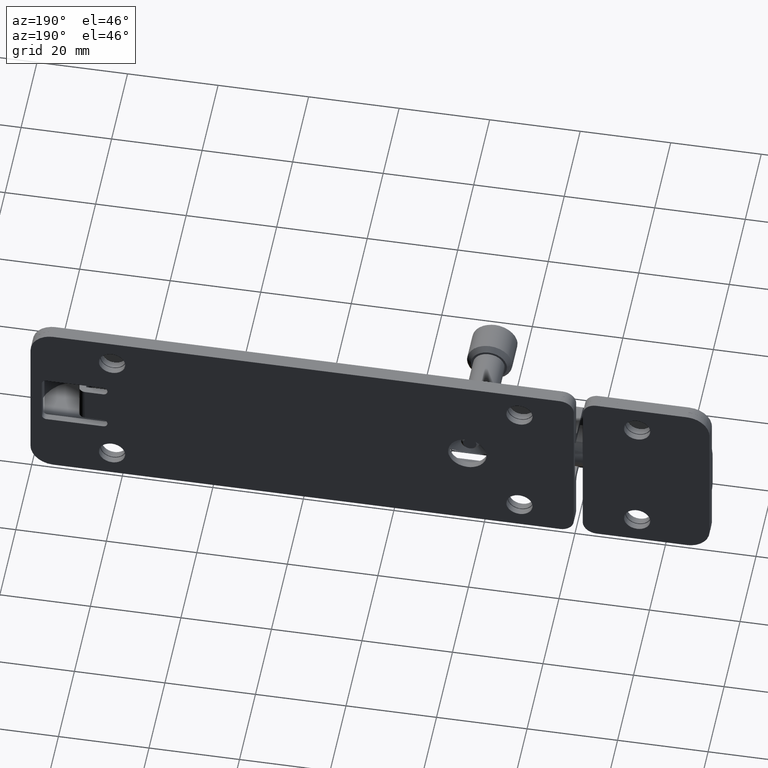
[diagram: clean part render]
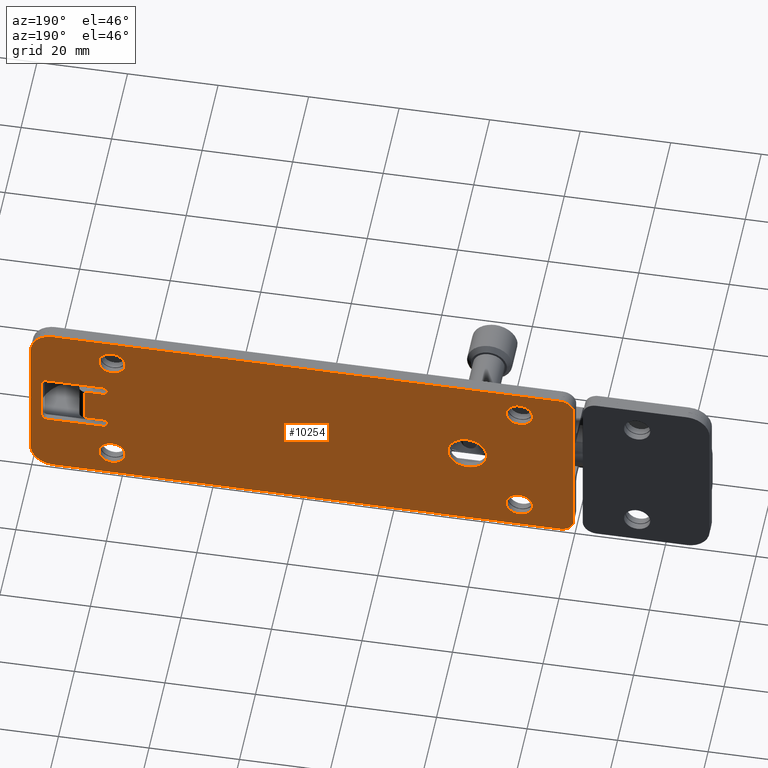
[diagram: same view with one face highlighted and labeled with its STEP entity id]
A machine part, auxiliary view. The second image highlights one B-rep face of the part: STEP entity #10254.
In plain terms, the highlighted face is a freeform B-spline surface patch.
Its self-contained STEP definition (entity closure, byte-faithful):
#8780=CARTESIAN_POINT('',(27.742072893239289,1.500000000000055,-0.259456293900190));
#8781=VERTEX_POINT('',#8780);
#8787=CARTESIAN_POINT('',(23.500000000000000,1.500000000000055,-4.250000000000000));
#8788=VERTEX_POINT('',#8787);
#8789=CARTESIAN_POINT('',(23.500000000000000,1.500000000000055,-4.250000000000000));
#8790=CARTESIAN_POINT('',(27.498000782692934,1.500000000000055,-4.250000000000002));
#8791=CARTESIAN_POINT('',(27.742072893239300,1.500000000000055,-0.259456293900190));
#8799=(BOUNDED_CURVE()B_SPLINE_CURVE(2,(#8789,#8790,#8791),.UNSPECIFIED.,.F.,.U.)B_SPLINE_CURVE_WITH_KNOTS((3,3),(0.500000000000000,0.739332962170620),.UNSPECIFIED.)CURVE()GEOMETRIC_REPRESENTATION_ITEM()RATIONAL_B_SPLINE_CURVE((1.0,0.719603993366756,0.976072041520288))REPRESENTATION_ITEM(''));
#8800=EDGE_CURVE('',#8788,#8781,#8799,.T.);
#8802=CARTESIAN_POINT('',(19.279709512962469,1.500000000000055,0.501645497358960));
#8803=VERTEX_POINT('',#8802);
#8804=CARTESIAN_POINT('',(19.279709512962473,1.500000000000055,0.501645497358960));
#8805=CARTESIAN_POINT('',(19.249999999999996,1.500000000000055,0.251702508589070));
#8806=CARTESIAN_POINT('',(19.250000000000000,1.500000000000055,0.0));
#8807=CARTESIAN_POINT('',(19.250000000000000,1.500000000000055,-4.249999999999999));
#8808=CARTESIAN_POINT('',(23.500000000000000,1.500000000000055,-4.250000000000000));
#8816=(BOUNDED_CURVE()B_SPLINE_CURVE(2,(#8804,#8805,#8806,#8807,#8808),.UNSPECIFIED.,.F.,.U.)B_SPLINE_CURVE_WITH_KNOTS((3,2,3),(0.229562473510219,0.250000000000000,0.500000000000000),.UNSPECIFIED.)CURVE()GEOMETRIC_REPRESENTATION_ITEM()RATIONAL_B_SPLINE_CURVE((0.956026754177252,0.976055948327292,1.0,0.707106781186548,1.0))REPRESENTATION_ITEM(''));
#8817=EDGE_CURVE('',#8803,#8788,#8816,.T.);
#8861=CARTESIAN_POINT('',(23.500000000000000,1.500000000000055,4.250000000000000));
#8862=VERTEX_POINT('',#8861);
#8863=CARTESIAN_POINT('',(23.500000000000000,1.500000000000055,4.250000000000000));
#8864=CARTESIAN_POINT('',(19.725258264828710,1.500000000000055,4.250000000000000));
#8865=CARTESIAN_POINT('',(19.279709512962473,1.500000000000055,0.501645497358960));
#8873=(BOUNDED_CURVE()B_SPLINE_CURVE(2,(#8863,#8864,#8865),.UNSPECIFIED.,.F.,.U.)B_SPLINE_CURVE_WITH_KNOTS((3,3),(0.0,0.229562473510219),.UNSPECIFIED.)CURVE()GEOMETRIC_REPRESENTATION_ITEM()RATIONAL_B_SPLINE_CURVE((1.0,0.731050832859256,0.956026754177252))REPRESENTATION_ITEM(''));
#8874=EDGE_CURVE('',#8862,#8803,#8873,.T.);
#8876=CARTESIAN_POINT('',(27.742072893239289,1.500000000000056,-0.259456293900190));
#8877=CARTESIAN_POINT('',(27.750000000000004,1.500000000000055,-0.129849244898510));
#8878=CARTESIAN_POINT('',(27.750000000000000,1.500000000000055,0.0));
#8879=CARTESIAN_POINT('',(27.749999999999989,1.500000000000055,4.249999999999999));
#8880=CARTESIAN_POINT('',(23.500000000000000,1.500000000000055,4.250000000000000));
#8888=(BOUNDED_CURVE()B_SPLINE_CURVE(2,(#8876,#8877,#8878,#8879,#8880),.UNSPECIFIED.,.F.,.U.)B_SPLINE_CURVE_WITH_KNOTS((3,2,3),(0.739332962170620,0.750000000000000,1.0),.UNSPECIFIED.)CURVE()GEOMETRIC_REPRESENTATION_ITEM()RATIONAL_B_SPLINE_CURVE((0.976072041520289,0.987502787819792,1.0,0.707106781186548,1.0))REPRESENTATION_ITEM(''));
#8889=EDGE_CURVE('',#8781,#8862,#8888,.T.);
#8966=CARTESIAN_POINT('',(14.894590915406081,1.500000000000055,-14.177040764934510));
#8967=VERTEX_POINT('',#8966);
#8973=CARTESIAN_POINT('',(12.0,1.500000000000055,-16.899999999999999));
#8974=VERTEX_POINT('',#8973);
#8975=CARTESIAN_POINT('',(12.0,1.500000000000055,-16.899999999999999));
#8976=CARTESIAN_POINT('',(14.728047593491286,1.500000000000055,-16.899999999999995));
#8977=CARTESIAN_POINT('',(14.894590915406077,1.500000000000055,-14.177040764934512));
#8985=(BOUNDED_CURVE()B_SPLINE_CURVE(2,(#8975,#8976,#8977),.UNSPECIFIED.,.F.,.U.)B_SPLINE_CURVE_WITH_KNOTS((3,3),(0.500000000000000,0.739332962208179),.UNSPECIFIED.)CURVE()GEOMETRIC_REPRESENTATION_ITEM()RATIONAL_B_SPLINE_CURVE((1.0,0.719603993322753,0.976072041600784))REPRESENTATION_ITEM(''));
#8986=EDGE_CURVE('',#8974,#8967,#8985,.T.);
#8988=CARTESIAN_POINT('',(9.120272373559278,1.500000000000055,-13.657700719378370));
#8989=VERTEX_POINT('',#8988);
#8990=CARTESIAN_POINT('',(9.120272373559278,1.500000000000055,-13.657700719378376));
#8991=CARTESIAN_POINT('',(9.099999999999998,1.500000000000055,-13.828250052891200));
#8992=CARTESIAN_POINT('',(9.100000000000000,1.500000000000055,-14.0));
#8993=CARTESIAN_POINT('',(9.100000000000000,1.500000000000055,-16.900000000000009));
#8994=CARTESIAN_POINT('',(12.0,1.500000000000055,-16.899999999999999));
#9002=(BOUNDED_CURVE()B_SPLINE_CURVE(2,(#8990,#8991,#8992,#8993,#8994),.UNSPECIFIED.,.F.,.U.)B_SPLINE_CURVE_WITH_KNOTS((3,2,3),(0.229562473501908,0.250000000000000,0.500000000000000),.UNSPECIFIED.)CURVE()GEOMETRIC_REPRESENTATION_ITEM()RATIONAL_B_SPLINE_CURVE((0.956026754160963,0.976055948317555,1.0,0.707106781186548,1.0))REPRESENTATION_ITEM(''));
#9003=EDGE_CURVE('',#8989,#8974,#9002,.T.);
#9047=CARTESIAN_POINT('',(12.0,1.500000000000055,-11.100000000000000));
#9048=VERTEX_POINT('',#9047);
#9049=CARTESIAN_POINT('',(12.0,1.500000000000055,-11.100000000000000));
#9050=CARTESIAN_POINT('',(9.424293874951848,1.500000000000055,-11.100000000000000));
#9051=CARTESIAN_POINT('',(9.120272373559278,1.500000000000055,-13.657700719378374));
#9059=(BOUNDED_CURVE()B_SPLINE_CURVE(2,(#9049,#9050,#9051),.UNSPECIFIED.,.F.,.U.)B_SPLINE_CURVE_WITH_KNOTS((3,3),(0.0,0.229562473501909),.UNSPECIFIED.)CURVE()GEOMETRIC_REPRESENTATION_ITEM()RATIONAL_B_SPLINE_CURVE((1.0,0.731050832868993,0.956026754160963))REPRESENTATION_ITEM(''));
#9060=EDGE_CURVE('',#9048,#8989,#9059,.T.);
#9062=CARTESIAN_POINT('',(14.894590915406075,1.500000000000055,-14.177040764934510));
#9063=CARTESIAN_POINT('',(14.900000000000004,1.500000000000055,-14.088603013850131));
#9064=CARTESIAN_POINT('',(14.900000000000000,1.500000000000055,-14.0));
#9065=CARTESIAN_POINT('',(14.900000000000002,1.500000000000055,-11.100000000000000));
#9066=CARTESIAN_POINT('',(12.0,1.500000000000055,-11.100000000000000));
#9074=(BOUNDED_CURVE()B_SPLINE_CURVE(2,(#9062,#9063,#9064,#9065,#9066),.UNSPECIFIED.,.F.,.U.)B_SPLINE_CURVE_WITH_KNOTS((3,2,3),(0.739332962208178,0.750000000000000,1.0),.UNSPECIFIED.)CURVE()GEOMETRIC_REPRESENTATION_ITEM()RATIONAL_B_SPLINE_CURVE((0.976072041600783,0.987502787863794,1.0,0.707106781186548,1.0))REPRESENTATION_ITEM(''));
#9075=EDGE_CURVE('',#8967,#9048,#9074,.T.);
#9152=CARTESIAN_POINT('',(104.894590915406100,1.500000000000055,-14.177040764934510));
#9153=VERTEX_POINT('',#9152);
#9159=CARTESIAN_POINT('',(102.0,1.500000000000055,-16.899999999999999));
#9160=VERTEX_POINT('',#9159);
#9161=CARTESIAN_POINT('',(102.0,1.500000000000055,-16.899999999999999));
#9162=CARTESIAN_POINT('',(104.728047593491270,1.500000000000055,-16.899999999999995));
#9163=CARTESIAN_POINT('',(104.894590915406110,1.500000000000055,-14.177040764934512));
#9171=(BOUNDED_CURVE()B_SPLINE_CURVE(2,(#9161,#9162,#9163),.UNSPECIFIED.,.F.,.U.)B_SPLINE_CURVE_WITH_KNOTS((3,3),(0.500000000000000,0.739332962208179),.UNSPECIFIED.)CURVE()GEOMETRIC_REPRESENTATION_ITEM()RATIONAL_B_SPLINE_CURVE((1.0,0.719603993322753,0.976072041600784))REPRESENTATION_ITEM(''));
#9172=EDGE_CURVE('',#9160,#9153,#9171,.T.);
#9174=CARTESIAN_POINT('',(99.120272373559288,1.500000000000055,-13.657700719378370));
#9175=VERTEX_POINT('',#9174);
#9176=CARTESIAN_POINT('',(99.120272373559288,1.500000000000055,-13.657700719378376));
#9177=CARTESIAN_POINT('',(99.099999999999980,1.500000000000055,-13.828250052891200));
#9178=CARTESIAN_POINT('',(99.099999999999994,1.500000000000055,-14.0));
#9179=CARTESIAN_POINT('',(99.100000000000009,1.500000000000055,-16.900000000000009));
#9180=CARTESIAN_POINT('',(102.0,1.500000000000055,-16.899999999999999));
#9188=(BOUNDED_CURVE()B_SPLINE_CURVE(2,(#9176,#9177,#9178,#9179,#9180),.UNSPECIFIED.,.F.,.U.)B_SPLINE_CURVE_WITH_KNOTS((3,2,3),(0.229562473501908,0.250000000000000,0.500000000000000),.UNSPECIFIED.)CURVE()GEOMETRIC_REPRESENTATION_ITEM()RATIONAL_B_SPLINE_CURVE((0.956026754160963,0.976055948317555,1.0,0.707106781186548,1.0))REPRESENTATION_ITEM(''));
#9189=EDGE_CURVE('',#9175,#9160,#9188,.T.);
#9233=CARTESIAN_POINT('',(102.0,1.500000000000055,-11.100000000000000));
#9234=VERTEX_POINT('',#9233);
#9235=CARTESIAN_POINT('',(102.0,1.500000000000055,-11.100000000000000));
#9236=CARTESIAN_POINT('',(99.424293874951857,1.500000000000055,-11.100000000000000));
#9237=CARTESIAN_POINT('',(99.120272373559288,1.500000000000055,-13.657700719378374));
#9245=(BOUNDED_CURVE()B_SPLINE_CURVE(2,(#9235,#9236,#9237),.UNSPECIFIED.,.F.,.U.)B_SPLINE_CURVE_WITH_KNOTS((3,3),(0.0,0.229562473501909),.UNSPECIFIED.)CURVE()GEOMETRIC_REPRESENTATION_ITEM()RATIONAL_B_SPLINE_CURVE((1.0,0.731050832868993,0.956026754160963))REPRESENTATION_ITEM(''));
#9246=EDGE_CURVE('',#9234,#9175,#9245,.T.);
#9248=CARTESIAN_POINT('',(104.894590915406070,1.500000000000055,-14.177040764934510));
#9249=CARTESIAN_POINT('',(104.899999999999960,1.500000000000055,-14.088603013850131));
#9250=CARTESIAN_POINT('',(104.900000000000010,1.500000000000055,-14.0));
#9251=CARTESIAN_POINT('',(104.899999999999980,1.500000000000055,-11.100000000000000));
#9252=CARTESIAN_POINT('',(102.0,1.500000000000055,-11.100000000000000));
#9260=(BOUNDED_CURVE()B_SPLINE_CURVE(2,(#9248,#9249,#9250,#9251,#9252),.UNSPECIFIED.,.F.,.U.)B_SPLINE_CURVE_WITH_KNOTS((3,2,3),(0.739332962208178,0.750000000000000,1.0),.UNSPECIFIED.)CURVE()GEOMETRIC_REPRESENTATION_ITEM()RATIONAL_B_SPLINE_CURVE((0.976072041600783,0.987502787863794,1.0,0.707106781186548,1.0))REPRESENTATION_ITEM(''));
#9261=EDGE_CURVE('',#9153,#9234,#9260,.T.);
#9338=CARTESIAN_POINT('',(14.894590915406081,1.500000000000055,13.822959235065490));
#9339=VERTEX_POINT('',#9338);
#9345=CARTESIAN_POINT('',(12.0,1.500000000000055,11.100000000000000));
#9346=VERTEX_POINT('',#9345);
#9347=CARTESIAN_POINT('',(12.0,1.500000000000055,11.100000000000000));
#9348=CARTESIAN_POINT('',(14.728047593491286,1.500000000000055,11.100000000000000));
#9349=CARTESIAN_POINT('',(14.894590915406077,1.500000000000055,13.822959235065486));
#9357=(BOUNDED_CURVE()B_SPLINE_CURVE(2,(#9347,#9348,#9349),.UNSPECIFIED.,.F.,.U.)B_SPLINE_CURVE_WITH_KNOTS((3,3),(0.500000000000000,0.739332962208179),.UNSPECIFIED.)CURVE()GEOMETRIC_REPRESENTATION_ITEM()RATIONAL_B_SPLINE_CURVE((1.0,0.719603993322753,0.976072041600784))REPRESENTATION_ITEM(''));
#9358=EDGE_CURVE('',#9346,#9339,#9357,.T.);
#9360=CARTESIAN_POINT('',(9.120272373559278,1.500000000000055,14.342299280621630));
#9361=VERTEX_POINT('',#9360);
#9362=CARTESIAN_POINT('',(9.120272373559278,1.500000000000055,14.342299280621626));
#9363=CARTESIAN_POINT('',(9.100000000000000,1.500000000000055,14.171749947108799));
#9364=CARTESIAN_POINT('',(9.100000000000000,1.500000000000055,14.0));
#9365=CARTESIAN_POINT('',(9.100000000000000,1.500000000000055,11.100000000000000));
#9366=CARTESIAN_POINT('',(12.0,1.500000000000055,11.100000000000000));
#9374=(BOUNDED_CURVE()B_SPLINE_CURVE(2,(#9362,#9363,#9364,#9365,#9366),.UNSPECIFIED.,.F.,.U.)B_SPLINE_CURVE_WITH_KNOTS((3,2,3),(0.229562473501909,0.250000000000000,0.500000000000000),.UNSPECIFIED.)CURVE()GEOMETRIC_REPRESENTATION_ITEM()RATIONAL_B_SPLINE_CURVE((0.956026754160963,0.976055948317555,1.0,0.707106781186548,1.0))REPRESENTATION_ITEM(''));
#9375=EDGE_CURVE('',#9361,#9346,#9374,.T.);
#9419=CARTESIAN_POINT('',(12.0,1.500000000000055,16.899999999999999));
#9420=VERTEX_POINT('',#9419);
#9421=CARTESIAN_POINT('',(12.0,1.500000000000055,16.899999999999999));
#9422=CARTESIAN_POINT('',(9.424293874951847,1.500000000000055,16.899999999999995));
#9423=CARTESIAN_POINT('',(9.120272373559278,1.500000000000056,14.342299280621624));
#9431=(BOUNDED_CURVE()B_SPLINE_CURVE(2,(#9421,#9422,#9423),.UNSPECIFIED.,.F.,.U.)B_SPLINE_CURVE_WITH_KNOTS((3,3),(0.0,0.229562473501909),.UNSPECIFIED.)CURVE()GEOMETRIC_REPRESENTATION_ITEM()RATIONAL_B_SPLINE_CURVE((1.0,0.731050832868993,0.956026754160963))REPRESENTATION_ITEM(''));
#9432=EDGE_CURVE('',#9420,#9361,#9431,.T.);
#9434=CARTESIAN_POINT('',(14.894590915406079,1.500000000000056,13.822959235065486));
#9435=CARTESIAN_POINT('',(14.900000000000004,1.500000000000055,13.911396986149878));
#9436=CARTESIAN_POINT('',(14.900000000000000,1.500000000000055,14.0));
#9437=CARTESIAN_POINT('',(14.900000000000002,1.500000000000055,16.900000000000009));
#9438=CARTESIAN_POINT('',(12.0,1.500000000000055,16.899999999999999));
#9446=(BOUNDED_CURVE()B_SPLINE_CURVE(2,(#9434,#9435,#9436,#9437,#9438),.UNSPECIFIED.,.F.,.U.)B_SPLINE_CURVE_WITH_KNOTS((3,2,3),(0.739332962208178,0.750000000000000,1.0),.UNSPECIFIED.)CURVE()GEOMETRIC_REPRESENTATION_ITEM()RATIONAL_B_SPLINE_CURVE((0.976072041600783,0.987502787863794,1.0,0.707106781186548,1.0))REPRESENTATION_ITEM(''));
#9447=EDGE_CURVE('',#9339,#9420,#9446,.T.);
#9524=CARTESIAN_POINT('',(104.894590915406100,1.500000000000055,13.822959235065490));
#9525=VERTEX_POINT('',#9524);
#9531=CARTESIAN_POINT('',(102.0,1.500000000000055,11.100000000000000));
#9532=VERTEX_POINT('',#9531);
#9533=CARTESIAN_POINT('',(102.0,1.500000000000055,11.100000000000000));
#9534=CARTESIAN_POINT('',(104.728047593491270,1.500000000000055,11.100000000000000));
#9535=CARTESIAN_POINT('',(104.894590915406110,1.500000000000055,13.822959235065486));
#9543=(BOUNDED_CURVE()B_SPLINE_CURVE(2,(#9533,#9534,#9535),.UNSPECIFIED.,.F.,.U.)B_SPLINE_CURVE_WITH_KNOTS((3,3),(0.500000000000000,0.739332962208179),.UNSPECIFIED.)CURVE()GEOMETRIC_REPRESENTATION_ITEM()RATIONAL_B_SPLINE_CURVE((1.0,0.719603993322753,0.976072041600784))REPRESENTATION_ITEM(''));
#9544=EDGE_CURVE('',#9532,#9525,#9543,.T.);
#9546=CARTESIAN_POINT('',(99.120272373559274,1.500000000000055,14.342299280621630));
#9547=VERTEX_POINT('',#9546);
#9548=CARTESIAN_POINT('',(99.120272373559274,1.500000000000055,14.342299280621628));
#9549=CARTESIAN_POINT('',(99.099999999999980,1.500000000000055,14.171749947108800));
#9550=CARTESIAN_POINT('',(99.099999999999994,1.500000000000055,14.0));
#9551=CARTESIAN_POINT('',(99.100000000000009,1.500000000000055,11.100000000000000));
#9552=CARTESIAN_POINT('',(102.0,1.500000000000055,11.100000000000000));
#9560=(BOUNDED_CURVE()B_SPLINE_CURVE(2,(#9548,#9549,#9550,#9551,#9552),.UNSPECIFIED.,.F.,.U.)B_SPLINE_CURVE_WITH_KNOTS((3,2,3),(0.229562473501908,0.250000000000000,0.500000000000000),.UNSPECIFIED.)CURVE()GEOMETRIC_REPRESENTATION_ITEM()RATIONAL_B_SPLINE_CURVE((0.956026754160963,0.976055948317555,1.0,0.707106781186548,1.0))REPRESENTATION_ITEM(''));
#9561=EDGE_CURVE('',#9547,#9532,#9560,.T.);
#9605=CARTESIAN_POINT('',(102.0,1.500000000000055,16.899999999999999));
#9606=VERTEX_POINT('',#9605);
#9607=CARTESIAN_POINT('',(102.0,1.500000000000055,16.899999999999999));
#9608=CARTESIAN_POINT('',(99.424293874951857,1.500000000000055,16.900000000000006));
#9609=CARTESIAN_POINT('',(99.120272373559274,1.500000000000055,14.342299280621626));
#9617=(BOUNDED_CURVE()B_SPLINE_CURVE(2,(#9607,#9608,#9609),.UNSPECIFIED.,.F.,.U.)B_SPLINE_CURVE_WITH_KNOTS((3,3),(0.0,0.229562473501909),.UNSPECIFIED.)CURVE()GEOMETRIC_REPRESENTATION_ITEM()RATIONAL_B_SPLINE_CURVE((1.0,0.731050832868993,0.956026754160963))REPRESENTATION_ITEM(''));
#9618=EDGE_CURVE('',#9606,#9547,#9617,.T.);
#9620=CARTESIAN_POINT('',(104.894590915406100,1.500000000000056,13.822959235065486));
#9621=CARTESIAN_POINT('',(104.899999999999980,1.500000000000055,13.911396986149878));
#9622=CARTESIAN_POINT('',(104.900000000000010,1.500000000000055,14.0));
#9623=CARTESIAN_POINT('',(104.899999999999980,1.500000000000055,16.900000000000009));
#9624=CARTESIAN_POINT('',(102.0,1.500000000000055,16.899999999999999));
#9632=(BOUNDED_CURVE()B_SPLINE_CURVE(2,(#9620,#9621,#9622,#9623,#9624),.UNSPECIFIED.,.F.,.U.)B_SPLINE_CURVE_WITH_KNOTS((3,2,3),(0.739332962208178,0.750000000000000,1.0),.UNSPECIFIED.)CURVE()GEOMETRIC_REPRESENTATION_ITEM()RATIONAL_B_SPLINE_CURVE((0.976072041600783,0.987502787863794,1.0,0.707106781186548,1.0))REPRESENTATION_ITEM(''));
#9633=EDGE_CURVE('',#9525,#9606,#9632,.T.);
#9668=CARTESIAN_POINT('',(108.0,1.500000000000085,-4.0));
#9669=VERTEX_POINT('',#9668);
#9685=CARTESIAN_POINT('',(108.0,1.500000000000085,4.0));
#9686=VERTEX_POINT('',#9685);
#9687=CARTESIAN_POINT('',(108.0,1.500000000000085,4.0));
#9688=CARTESIAN_POINT('',(108.0,1.500000000000085,-4.0));
#9689=QUASI_UNIFORM_CURVE('',1,(#9687,#9688),.UNSPECIFIED.,.F.,.U.);
#9690=EDGE_CURVE('',#9686,#9669,#9689,.T.);
#10017=CARTESIAN_POINT('',(-5.993999767416703,1.500000000000085,21.997999922472239));
#10018=CARTESIAN_POINT('',(125.994002986067500,1.500000000000085,21.997999922472239));
#10019=CARTESIAN_POINT('',(-5.993999767416703,1.500000000000085,-21.998000995355842));
#10020=CARTESIAN_POINT('',(125.994002986067500,1.500000000000085,-21.998000995355842));
#10021=B_SPLINE_SURFACE_WITH_KNOTS('',1,1,((#10017,#10019),(#10018,#10020)),.UNSPECIFIED.,.F.,.F.,.U.,(2,2),(2,2),(0.0,131.988002753484210),(0.0,43.996000917828077),.UNSPECIFIED.);
#10022=CARTESIAN_POINT('',(1.110223E-014,1.500000000000055,16.999999738200600));
#10023=VERTEX_POINT('',#10022);
#10024=CARTESIAN_POINT('',(3.641532E-014,1.500000000000055,-16.999999528761101));
#10025=VERTEX_POINT('',#10024);
#10026=CARTESIAN_POINT('',(1.110223E-014,1.500000000000055,16.999999738200600));
#10027=CARTESIAN_POINT('',(3.641532E-014,1.500000000000055,-16.999999528761101));
#10028=QUASI_UNIFORM_CURVE('',1,(#10026,#10027),.UNSPECIFIED.,.F.,.U.);
#10029=EDGE_CURVE('',#10023,#10025,#10028,.T.);
#10030=ORIENTED_EDGE('',*,*,#10029,.F.);
#10031=CARTESIAN_POINT('',(3.0,1.500000000000055,20.0));
#10032=VERTEX_POINT('',#10031);
#10033=CARTESIAN_POINT('',(3.0,1.500000000000055,20.0));
#10034=CARTESIAN_POINT('',(1.757359236201445,1.500000000000055,20.000000000000004));
#10035=CARTESIAN_POINT('',(0.878679563880294,1.500000000000055,19.121320250999581));
#10036=CARTESIAN_POINT('',(-0.000000108440858,1.500000000000055,18.242640501999155));
#10037=CARTESIAN_POINT('',(1.127570E-014,1.500000000000055,16.999999738200600));
#10045=(BOUNDED_CURVE()B_SPLINE_CURVE(2,(#10033,#10034,#10035,#10036,#10037),.UNSPECIFIED.,.F.,.U.)B_SPLINE_CURVE_WITH_KNOTS((3,2,3),(0.0,0.500000000000000,1.0),.UNSPECIFIED.)CURVE()GEOMETRIC_REPRESENTATION_ITEM()RATIONAL_B_SPLINE_CURVE((1.0,0.923879524162429,1.0,0.923879524162429,1.0))REPRESENTATION_ITEM(''));
#10046=EDGE_CURVE('',#10032,#10023,#10045,.T.);
#10047=ORIENTED_EDGE('',*,*,#10046,.F.);
#10048=CARTESIAN_POINT('',(114.999999738200600,1.500000000000055,20.0));
#10049=VERTEX_POINT('',#10048);
#10050=CARTESIAN_POINT('',(114.999999738200600,1.500000000000055,20.0));
#10051=CARTESIAN_POINT('',(3.0,1.500000000000055,20.0));
#10052=QUASI_UNIFORM_CURVE('',1,(#10050,#10051),.UNSPECIFIED.,.F.,.U.);
#10053=EDGE_CURVE('',#10049,#10032,#10052,.T.);
#10054=ORIENTED_EDGE('',*,*,#10053,.F.);
#10055=CARTESIAN_POINT('',(120.0,1.500000000000055,15.0));
#10056=VERTEX_POINT('',#10055);
#10057=CARTESIAN_POINT('',(120.0,1.500000000000055,15.0));
#10058=CARTESIAN_POINT('',(119.999999999999970,1.500000000000055,17.071067888544743));
#10059=CARTESIAN_POINT('',(118.535533813372690,1.500000000000055,18.535533998492799));
#10060=CARTESIAN_POINT('',(117.071067626745360,1.500000000000055,20.000000108440862));
#10061=CARTESIAN_POINT('',(114.999999738200600,1.500000000000055,19.999999999999989));
#10069=(BOUNDED_CURVE()B_SPLINE_CURVE(2,(#10057,#10058,#10059,#10060,#10061),.UNSPECIFIED.,.F.,.U.)B_SPLINE_CURVE_WITH_KNOTS((3,2,3),(0.0,0.500000000000000,1.0),.UNSPECIFIED.)CURVE()GEOMETRIC_REPRESENTATION_ITEM()RATIONAL_B_SPLINE_CURVE((1.0,0.923879527501972,1.0,0.923879527501972,1.0))REPRESENTATION_ITEM(''));
#10070=EDGE_CURVE('',#10056,#10049,#10069,.T.);
#10071=ORIENTED_EDGE('',*,*,#10070,.F.);
#10072=CARTESIAN_POINT('',(120.0,1.500000000000055,-15.0));
#10073=VERTEX_POINT('',#10072);
#10074=CARTESIAN_POINT('',(120.0,1.500000000000055,-15.0));
#10075=CARTESIAN_POINT('',(120.0,1.500000000000055,15.0));
#10076=QUASI_UNIFORM_CURVE('',1,(#10074,#10075),.UNSPECIFIED.,.F.,.U.);
#10077=EDGE_CURVE('',#10073,#10056,#10076,.T.);
#10078=ORIENTED_EDGE('',*,*,#10077,.F.);
#10079=CARTESIAN_POINT('',(115.0,1.500000000000055,-20.0));
#10080=VERTEX_POINT('',#10079);
#10081=CARTESIAN_POINT('',(115.0,1.500000000000055,-20.0));
#10082=CARTESIAN_POINT('',(120.000000000000040,1.500000000000055,-19.999999999999996));
#10083=CARTESIAN_POINT('',(120.0,1.500000000000055,-15.0));
#10091=(BOUNDED_CURVE()B_SPLINE_CURVE(2,(#10081,#10082,#10083),.UNSPECIFIED.,.F.,.U.)CURVE()GEOMETRIC_REPRESENTATION_ITEM()QUASI_UNIFORM_CURVE()RATIONAL_B_SPLINE_CURVE((1.0,0.707106781186548,1.0))REPRESENTATION_ITEM(''));
#10092=EDGE_CURVE('',#10080,#10073,#10091,.T.);
#10093=ORIENTED_EDGE('',*,*,#10092,.F.);
#10094=CARTESIAN_POINT('',(3.000000052359875,1.500000000000055,-20.0));
#10095=VERTEX_POINT('',#10094);
#10096=CARTESIAN_POINT('',(3.000000052359875,1.500000000000055,-20.0));
#10097=CARTESIAN_POINT('',(115.0,1.500000000000055,-20.0));
#10098=QUASI_UNIFORM_CURVE('',1,(#10096,#10097),.UNSPECIFIED.,.F.,.U.);
#10099=EDGE_CURVE('',#10095,#10080,#10098,.T.);
#10100=ORIENTED_EDGE('',*,*,#10099,.F.);
#10101=CARTESIAN_POINT('',(3.686287E-014,1.500000000000055,-16.999999528761101));
#10102=CARTESIAN_POINT('',(-0.000000195193531,1.500000000000056,-18.242640369238902));
#10103=CARTESIAN_POINT('',(0.878679508344262,1.500000000000055,-19.121320195463539));
#10104=CARTESIAN_POINT('',(1.757359211882055,1.500000000000056,-20.000000021688173));
#10105=CARTESIAN_POINT('',(3.000000052359873,1.500000000000055,-20.0));
#10113=(BOUNDED_CURVE()B_SPLINE_CURVE(2,(#10101,#10102,#10103,#10104,#10105),.UNSPECIFIED.,.F.,.U.)B_SPLINE_CURVE_WITH_KNOTS((3,2,3),(0.0,0.500000000000000,1.0),.UNSPECIFIED.)CURVE()GEOMETRIC_REPRESENTATION_ITEM()RATIONAL_B_SPLINE_CURVE((1.0,0.923879515813571,1.0,0.923879515813571,1.0))REPRESENTATION_ITEM(''));
#10114=EDGE_CURVE('',#10025,#10095,#10113,.T.);
#10115=ORIENTED_EDGE('',*,*,#10114,.F.);
#10116=EDGE_LOOP('',(#10030,#10047,#10054,#10071,#10078,#10093,#10100,#10115));
#10117=FACE_OUTER_BOUND('',#10116,.T.);
#10118=CARTESIAN_POINT('',(117.500000000000000,1.500000000000055,5.0));
#10119=VERTEX_POINT('',#10118);
#10120=CARTESIAN_POINT('',(116.500000000000000,1.500000000000055,6.0));
#10121=VERTEX_POINT('',#10120);
#10122=CARTESIAN_POINT('',(117.500000000000000,1.500000000000055,5.0));
#10123=CARTESIAN_POINT('',(117.500000000000010,1.500000000000055,6.0));
#10124=CARTESIAN_POINT('',(116.500000000000000,1.500000000000055,6.0));
#10132=(BOUNDED_CURVE()B_SPLINE_CURVE(2,(#10122,#10123,#10124),.UNSPECIFIED.,.F.,.U.)CURVE()GEOMETRIC_REPRESENTATION_ITEM()QUASI_UNIFORM_CURVE()RATIONAL_B_SPLINE_CURVE((1.0,0.707106781186548,1.0))REPRESENTATION_ITEM(''));
#10133=EDGE_CURVE('',#10119,#10121,#10132,.T.);
#10134=ORIENTED_EDGE('',*,*,#10133,.T.);
#10135=CARTESIAN_POINT('',(104.000000052359990,1.500000000000055,6.0));
#10136=VERTEX_POINT('',#10135);
#10137=CARTESIAN_POINT('',(104.000000052359990,1.500000000000055,6.0));
#10138=CARTESIAN_POINT('',(116.500000000000000,1.500000000000055,6.0));
#10139=QUASI_UNIFORM_CURVE('',1,(#10137,#10138),.UNSPECIFIED.,.F.,.U.);
#10140=EDGE_CURVE('',#10136,#10121,#10139,.T.);
#10141=ORIENTED_EDGE('',*,*,#10140,.F.);
#10142=CARTESIAN_POINT('',(104.0,1.500000000000055,4.0));
#10143=VERTEX_POINT('',#10142);
#10144=CARTESIAN_POINT('',(104.000000052359990,1.500000000000055,5.999999999999998));
#10145=CARTESIAN_POINT('',(103.422649771534820,1.500000000000055,6.000000030230063));
#10146=CARTESIAN_POINT('',(103.133974613668900,1.500000000000055,5.500000030230063));
#10147=CARTESIAN_POINT('',(102.845299455802970,1.500000000000055,5.000000030230065));
#10148=CARTESIAN_POINT('',(103.133974587488890,1.500000000000055,4.500000015115032));
#10149=CARTESIAN_POINT('',(103.422649719174810,1.500000000000055,4.000000000000001));
#10150=CARTESIAN_POINT('',(104.0,1.500000000000055,4.0));
#10158=(BOUNDED_CURVE()B_SPLINE_CURVE(2,(#10144,#10145,#10146,#10147,#10148,#10149,#10150),.UNSPECIFIED.,.F.,.U.)B_SPLINE_CURVE_WITH_KNOTS((3,2,2,3),(0.0,0.333333333333333,0.666666666666667,1.0),.UNSPECIFIED.)CURVE()GEOMETRIC_REPRESENTATION_ITEM()RATIONAL_B_SPLINE_CURVE((1.0,0.866025399421105,1.0,0.866025399421105,1.0,0.866025399421105,1.0))REPRESENTATION_ITEM(''));
#10159=EDGE_CURVE('',#10136,#10143,#10158,.T.);
#10160=ORIENTED_EDGE('',*,*,#10159,.T.);
#10161=CARTESIAN_POINT('',(108.0,1.500000000000085,4.0));
#10162=CARTESIAN_POINT('',(104.0,1.500000000000055,4.0));
#10163=QUASI_UNIFORM_CURVE('',1,(#10161,#10162),.UNSPECIFIED.,.F.,.U.);
#10164=EDGE_CURVE('',#9686,#10143,#10163,.T.);
#10165=ORIENTED_EDGE('',*,*,#10164,.F.);
#10166=ORIENTED_EDGE('',*,*,#9690,.T.);
#10167=CARTESIAN_POINT('',(104.000000052359990,1.500000000000055,-4.0));
#10168=VERTEX_POINT('',#10167);
#10169=CARTESIAN_POINT('',(104.000000052359990,1.500000000000055,-4.0));
#10170=CARTESIAN_POINT('',(108.0,1.500000000000085,-4.0));
#10171=QUASI_UNIFORM_CURVE('',1,(#10169,#10170),.UNSPECIFIED.,.F.,.U.);
#10172=EDGE_CURVE('',#10168,#9669,#10171,.T.);
#10173=ORIENTED_EDGE('',*,*,#10172,.F.);
#10174=CARTESIAN_POINT('',(104.0,1.500000000000055,-6.0));
#10175=VERTEX_POINT('',#10174);
#10176=CARTESIAN_POINT('',(104.000000052359990,1.500000000000055,-4.000000000000002));
#10177=CARTESIAN_POINT('',(103.422649771534820,1.500000000000055,-3.999999969769938));
#10178=CARTESIAN_POINT('',(103.133974613668900,1.500000000000055,-4.499999969769937));
#10179=CARTESIAN_POINT('',(102.845299455802970,1.500000000000055,-4.999999969769936));
#10180=CARTESIAN_POINT('',(103.133974587488890,1.500000000000055,-5.499999984884968));
#10181=CARTESIAN_POINT('',(103.422649719174810,1.500000000000055,-6.0));
#10182=CARTESIAN_POINT('',(104.0,1.500000000000055,-6.0));
#10190=(BOUNDED_CURVE()B_SPLINE_CURVE(2,(#10176,#10177,#10178,#10179,#10180,#10181,#10182),.UNSPECIFIED.,.F.,.U.)B_SPLINE_CURVE_WITH_KNOTS((3,2,2,3),(0.0,0.333333333333333,0.666666666666667,1.0),.UNSPECIFIED.)CURVE()GEOMETRIC_REPRESENTATION_ITEM()RATIONAL_B_SPLINE_CURVE((1.0,0.866025399421105,1.0,0.866025399421105,1.0,0.866025399421105,1.0))REPRESENTATION_ITEM(''));
#10191=EDGE_CURVE('',#10168,#10175,#10190,.T.);
#10192=ORIENTED_EDGE('',*,*,#10191,.T.);
#10193=CARTESIAN_POINT('',(116.499999982546600,1.500000000000055,-6.0));
#10194=VERTEX_POINT('',#10193);
#10195=CARTESIAN_POINT('',(116.499999982546600,1.500000000000055,-6.0));
#10196=CARTESIAN_POINT('',(104.0,1.500000000000055,-6.0));
#10197=QUASI_UNIFORM_CURVE('',1,(#10195,#10196),.UNSPECIFIED.,.F.,.U.);
#10198=EDGE_CURVE('',#10194,#10175,#10197,.T.);
#10199=ORIENTED_EDGE('',*,*,#10198,.F.);
#10200=CARTESIAN_POINT('',(117.500000000000000,1.500000000000055,-5.0));
#10201=VERTEX_POINT('',#10200);
#10202=CARTESIAN_POINT('',(116.499999982546600,1.500000000000055,-6.0));
#10203=CARTESIAN_POINT('',(116.914213550031630,1.500000000000055,-6.000000007229442));
#10204=CARTESIAN_POINT('',(117.207106775015800,1.500000000000055,-5.707106787357261));
#10205=CARTESIAN_POINT('',(117.500000000000010,1.500000000000055,-5.414213567485081));
#10206=CARTESIAN_POINT('',(117.500000000000000,1.500000000000055,-5.0));
#10214=(BOUNDED_CURVE()B_SPLINE_CURVE(2,(#10202,#10203,#10204,#10205,#10206),.UNSPECIFIED.,.F.,.U.)B_SPLINE_CURVE_WITH_KNOTS((3,2,3),(0.0,0.500000000000000,1.0),.UNSPECIFIED.)CURVE()GEOMETRIC_REPRESENTATION_ITEM()RATIONAL_B_SPLINE_CURVE((1.0,0.923879530841504,1.0,0.923879530841504,1.0))REPRESENTATION_ITEM(''));
#10215=EDGE_CURVE('',#10194,#10201,#10214,.T.);
#10216=ORIENTED_EDGE('',*,*,#10215,.T.);
#10217=CARTESIAN_POINT('',(117.500000000000000,1.500000000000055,5.0));
#10218=CARTESIAN_POINT('',(117.500000000000000,1.500000000000055,-5.0));
#10219=QUASI_UNIFORM_CURVE('',1,(#10217,#10218),.UNSPECIFIED.,.F.,.U.);
#10220=EDGE_CURVE('',#10119,#10201,#10219,.T.);
#10221=ORIENTED_EDGE('',*,*,#10220,.F.);
#10222=EDGE_LOOP('',(#10134,#10141,#10160,#10165,#10166,#10173,#10192,#10199,#10216,#10221));
#10223=FACE_BOUND('',#10222,.T.);
#10224=ORIENTED_EDGE('',*,*,#9544,.T.);
#10225=ORIENTED_EDGE('',*,*,#9633,.T.);
#10226=ORIENTED_EDGE('',*,*,#9618,.T.);
#10227=ORIENTED_EDGE('',*,*,#9561,.T.);
#10228=EDGE_LOOP('',(#10224,#10225,#10226,#10227));
#10229=FACE_BOUND('',#10228,.T.);
#10230=ORIENTED_EDGE('',*,*,#9358,.T.);
#10231=ORIENTED_EDGE('',*,*,#9447,.T.);
#10232=ORIENTED_EDGE('',*,*,#9432,.T.);
#10233=ORIENTED_EDGE('',*,*,#9375,.T.);
#10234=EDGE_LOOP('',(#10230,#10231,#10232,#10233));
#10235=FACE_BOUND('',#10234,.T.);
#10236=ORIENTED_EDGE('',*,*,#9172,.T.);
#10237=ORIENTED_EDGE('',*,*,#9261,.T.);
#10238=ORIENTED_EDGE('',*,*,#9246,.T.);
#10239=ORIENTED_EDGE('',*,*,#9189,.T.);
#10240=EDGE_LOOP('',(#10236,#10237,#10238,#10239));
#10241=FACE_BOUND('',#10240,.T.);
#10242=ORIENTED_EDGE('',*,*,#8986,.T.);
#10243=ORIENTED_EDGE('',*,*,#9075,.T.);
#10244=ORIENTED_EDGE('',*,*,#9060,.T.);
#10245=ORIENTED_EDGE('',*,*,#9003,.T.);
#10246=EDGE_LOOP('',(#10242,#10243,#10244,#10245));
#10247=FACE_BOUND('',#10246,.T.);
#10248=ORIENTED_EDGE('',*,*,#8800,.T.);
#10249=ORIENTED_EDGE('',*,*,#8889,.T.);
#10250=ORIENTED_EDGE('',*,*,#8874,.T.);
#10251=ORIENTED_EDGE('',*,*,#8817,.T.);
#10252=EDGE_LOOP('',(#10248,#10249,#10250,#10251));
#10253=FACE_BOUND('',#10252,.T.);
#10254=ADVANCED_FACE('',(#10117,#10223,#10229,#10235,#10241,#10247,#10253),#10021,.T.);